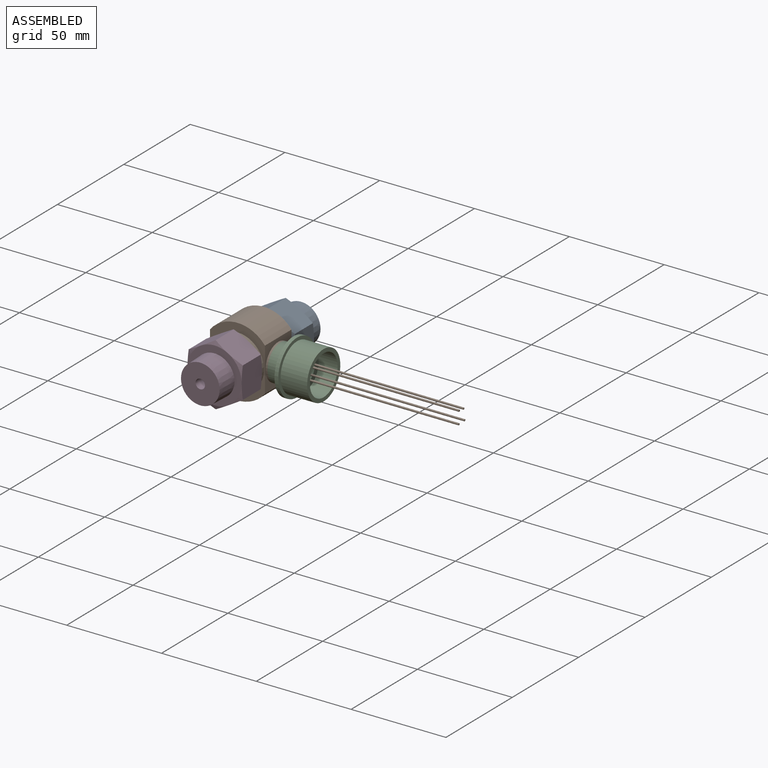
[diagram: assembled view]
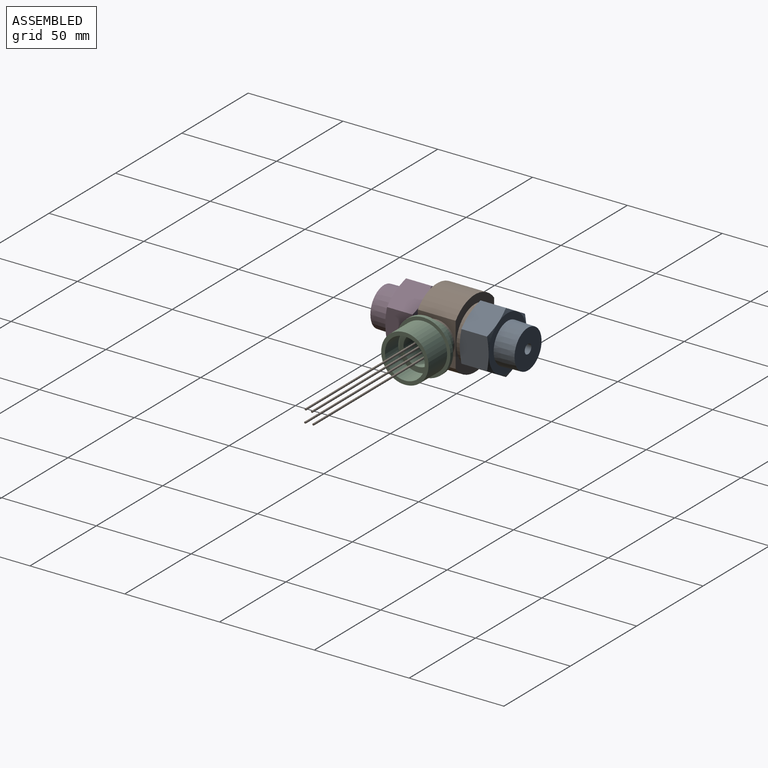
[diagram: assembled view, second angle]
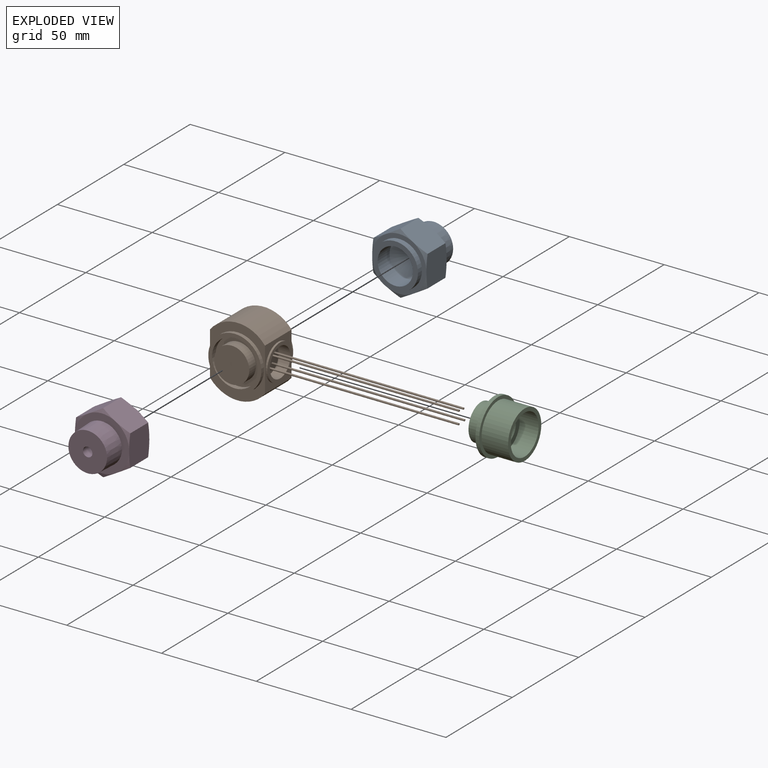
[diagram: exploded view]
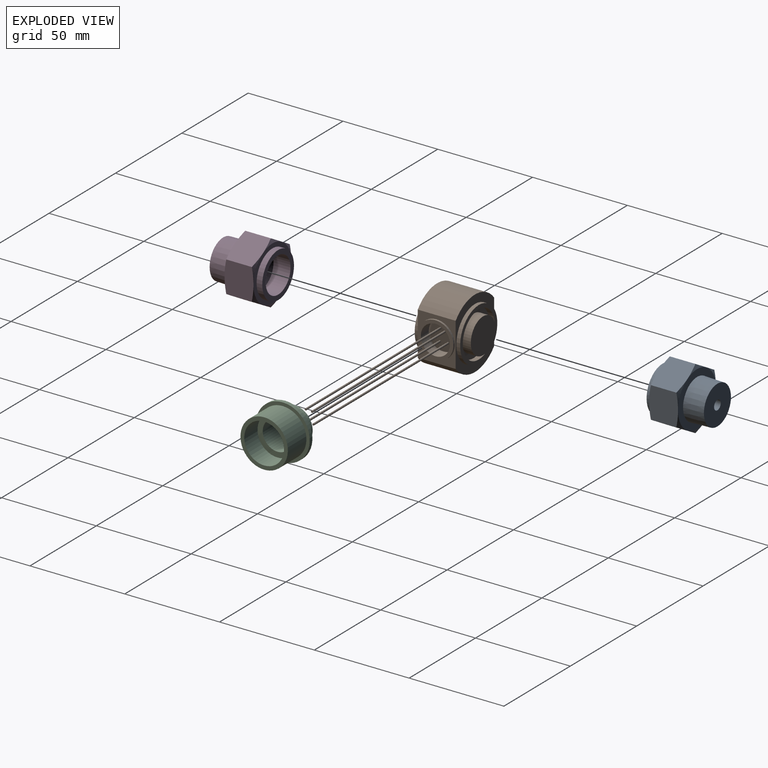
[diagram: exploded view, second angle]
ASSEMBLY  parts=4 mates=6
PART A: 27 faces, bbox 29x33x33 mm
  f0: plane 28.58x28.58mm, normal (1,0,0), area 192.7mm2, adj f4,f15,f16,f17,f18,f19,f20
  f1: plane 28.58x28.58mm, normal (-1,0,0), area 292.8mm2, adj f8,f9,f10,f11,f12,f13,f14
  f2: plane 20.39x20.39mm, normal (-1,0,0), area 307mm2, adj f3,f8
  f3: cylinder r=2.5mm len=15.88mm, axis (1,0,0), area 249.5mm2, adj f2,f6
  f4: cylinder r=11.95mm len=23.9mm, axis (1,0,0), area 225.3mm2, adj f0,f5
  f5: plane 23.9x23.9mm, normal (1,0,0), area 174mm2, adj f4,f7
  f6: cone r=0mm half-angle=59deg, axis (1,0,0), area 297.5mm2, adj f3,f7
  f7: cylinder r=9.35mm len=18.7mm, axis (1,0,0), area 528.7mm2, adj f5,f6
  f8: cone r=10.16mm half-angle=1.8deg, axis (1,0,0), area 700.9mm2, adj f1,f2
  f9: cone r=14.29mm half-angle=68.2deg, axis (1,0,0), area 11.8mm2, adj f1,f25,f26
  f10: cone r=14.29mm half-angle=68.2deg, axis (1,0,0), area 11.8mm2, adj f1,f24,f25
  f11: cone r=14.29mm half-angle=68.2deg, axis (1,0,0), area 11.8mm2, adj f1,f23,f24
  f12: cone r=14.29mm half-angle=68.2deg, axis (1,0,0), area 11.8mm2, adj f1,f22,f23
  f13: cone r=14.29mm half-angle=68.2deg, axis (1,0,0), area 11.8mm2, adj f1,f21,f22
  f14: cone r=14.29mm half-angle=68.2deg, axis (1,0,0), area 11.8mm2, adj f1,f21,f26
  f15: cone r=16.83mm half-angle=68.2deg, axis (-1,0,0), area 11.8mm2, adj f0,f25,f26
  f16: cone r=16.83mm half-angle=68.2deg, axis (-1,0,0), area 11.8mm2, adj f0,f24,f25
  f17: cone r=16.83mm half-angle=68.2deg, axis (-1,0,0), area 11.8mm2, adj f0,f23,f24
  f18: cone r=16.83mm half-angle=68.2deg, axis (-1,0,0), area 11.8mm2, adj f0,f22,f23
  f19: cone r=16.83mm half-angle=68.2deg, axis (-1,0,0), area 11.8mm2, adj f0,f21,f22
  f20: cone r=16.83mm half-angle=68.2deg, axis (-1,0,0), area 11.8mm2, adj f0,f21,f26
  f21: plane 15.25x14.29mm, normal (0,-0.87,-0.5), area 241.5mm2, adj f13,f14,f19,f20,f22,f26
  f22: plane 15.25x14.29mm, normal (0,-0.87,0.5), area 241.5mm2, adj f12,f13,f18,f19,f21,f23
  f23: plane 16.51x15.25mm, normal (0,0,1), area 241.5mm2, adj f11,f12,f17,f18,f22,f24
  f24: plane 15.25x14.29mm, normal (0,0.87,0.5), area 241.5mm2, adj f10,f11,f16,f17,f23,f25
  f25: plane 15.25x14.29mm, normal (0,0.87,-0.5), area 241.5mm2, adj f9,f10,f15,f16,f24,f26
  f26: plane 16.51x15.25mm, normal (0,0,-1), area 241.5mm2, adj f9,f14,f15,f20,f21,f25
PART B: 30 faces, bbox 125.6x28.6x37 mm
  f0: cylinder r=18.5mm len=29mm, axis (0,1,0), area 666.5mm2, adj f1,f3,f4,f5
  f1: plane 22.98x20mm, normal (-1,0,0), area 459.6mm2, adj f0,f2,f4,f5
  f2: cylinder r=18.5mm len=29mm, axis (0,1,0), area 666.5mm2, adj f1,f3,f4,f5
  f3: plane 22.98x20mm, normal (1,0,0), area 176mm2, adj f0,f2,f4,f5,f7
  f4: plane 37x29mm, normal (0,-1,0), area 334mm2, adj f0,f1,f2,f3,f14
  f5: plane 37x29mm, normal (0,1,0), area 334mm2, adj f0,f1,f2,f3,f11
  f6: cylinder r=7.7mm len=15.4mm, axis (-1,0,0), area 290.3mm2, adj f8,f9
  f7: cylinder r=9.5mm len=19mm, axis (-1,0,0), area 59.7mm2, adj f3,f8
  f8: plane 19x19mm, normal (1,0,0), area 97.3mm2, adj f6,f7
  f9: plane 15.4x15.4mm, normal (1,0,0), area 183.1mm2, adj f6,f22,f24,f26,f28
  f10: cylinder r=12mm len=24mm, axis (0,-1,0), area 203.6mm2, adj f12,f16
  f11: cylinder r=14mm len=28mm, axis (0,-1,0), area 175.9mm2, adj f5,f12
  f12: plane 28x28mm, normal (0,1,0), area 163.4mm2, adj f10,f11
  f13: cylinder r=12mm len=24mm, axis (0,1,0), area 203.6mm2, adj f15,f17
  f14: cylinder r=14mm len=28mm, axis (0,1,0), area 175.9mm2, adj f4,f15
  f15: plane 28x28mm, normal (0,-1,0), area 163.4mm2, adj f13,f14
  f16: plane 24x24mm, normal (0,1,0), area 183.6mm2, adj f10,f18
  f17: plane 24x24mm, normal (0,-1,0), area 183.6mm2, adj f13,f20
  f18: cylinder r=9.25mm len=18.5mm, axis (0,-1,0), area 290.6mm2, adj f16,f19
  f19: plane 18.5x18.5mm, normal (0,1,0), area 268.8mm2, adj f18
  f20: cylinder r=9.25mm len=18.5mm, axis (0,1,0), area 290.6mm2, adj f17,f21
  f21: plane 18.5x18.5mm, normal (0,-1,0), area 268.8mm2, adj f20
  f22: cylinder r=0.5mm len=101.6mm, axis (-1,0,0), area 319.2mm2, adj f9,f23
  f23: plane 1x1mm, normal (1,0,0), area 0.8mm2, adj f22
  f24: cylinder r=0.5mm len=101.6mm, axis (-1,0,0), area 319.2mm2, adj f9,f25
  f25: plane 1x1mm, normal (1,0,0), area 0.8mm2, adj f24
  f26: cylinder r=0.5mm len=101.6mm, axis (-1,0,0), area 319.2mm2, adj f9,f27
  f27: plane 1x1mm, normal (1,0,0), area 0.8mm2, adj f26
  f28: cylinder r=0.5mm len=101.6mm, axis (-1,0,0), area 319.2mm2, adj f9,f29
  f29: plane 1x1mm, normal (1,0,0), area 0.8mm2, adj f28
PART C: 10 faces, bbox 23x28.5x28.5 mm
  f0: plane 19x19mm, normal (-1,0,0), area 94.8mm2, adj f1,f9
  f1: cylinder r=7.75mm len=15.5mm, axis (-1,0,0), area 633mm2, adj f0,f2
  f2: plane 21x21mm, normal (1,0,0), area 157.7mm2, adj f1,f3
  f3: cylinder r=10.5mm len=21mm, axis (-1,0,0), area 659.7mm2, adj f2,f4
  f4: plane 25x25mm, normal (1,0,0), area 144.5mm2, adj f3,f5
  f5: cylinder r=12.5mm len=25mm, axis (-1,0,0), area 1099.6mm2, adj f4,f6
  f6: plane 28.5x28.5mm, normal (1,0,0), area 147.1mm2, adj f5,f7
  f7: cylinder r=14.25mm len=28.5mm, axis (-1,0,0), area 179.1mm2, adj f6,f8
  f8: plane 28.5x28.5mm, normal (-1,0,0), area 354.4mm2, adj f7,f9
  f9: cylinder r=9.5mm len=19mm, axis (-1,0,0), area 417.8mm2, adj f0,f8
PART D: same geometry as A
PLACE A rot(axis=(-0.58,0.58,-0.58),120deg) t=(125.19,124.64,52.37)mm
PLACE B t=(24.17,96.64,-17.84)mm
PLACE C t=(196.88,86.64,9.72)mm
PLACE D rot(axis=(0.58,0.58,0.58),120deg) t=(125.19,48.64,-32.92)mm
MATE planar D.f3 <-> B.f0  axis (0,1,0) through (181.38,74.64,9.72)mm
MATE slider D.f3 <-> B.f0  axis (0,1,0) through (181.38,73.14,9.72)mm
MATE planar A.f3 <-> B.f0  axis (0,-1,0) through (181.38,98.64,9.72)mm
MATE planar B.f6 <-> C.f1  axis (1,0,0) through (196.88,86.64,9.72)mm
MATE slider C.f1 <-> B.f6  axis (-1,0,0) through (219.88,86.64,9.72)mm
MATE slider A.f3 <-> B.f0  axis (0,-1,0) through (181.38,95.64,9.72)mm
